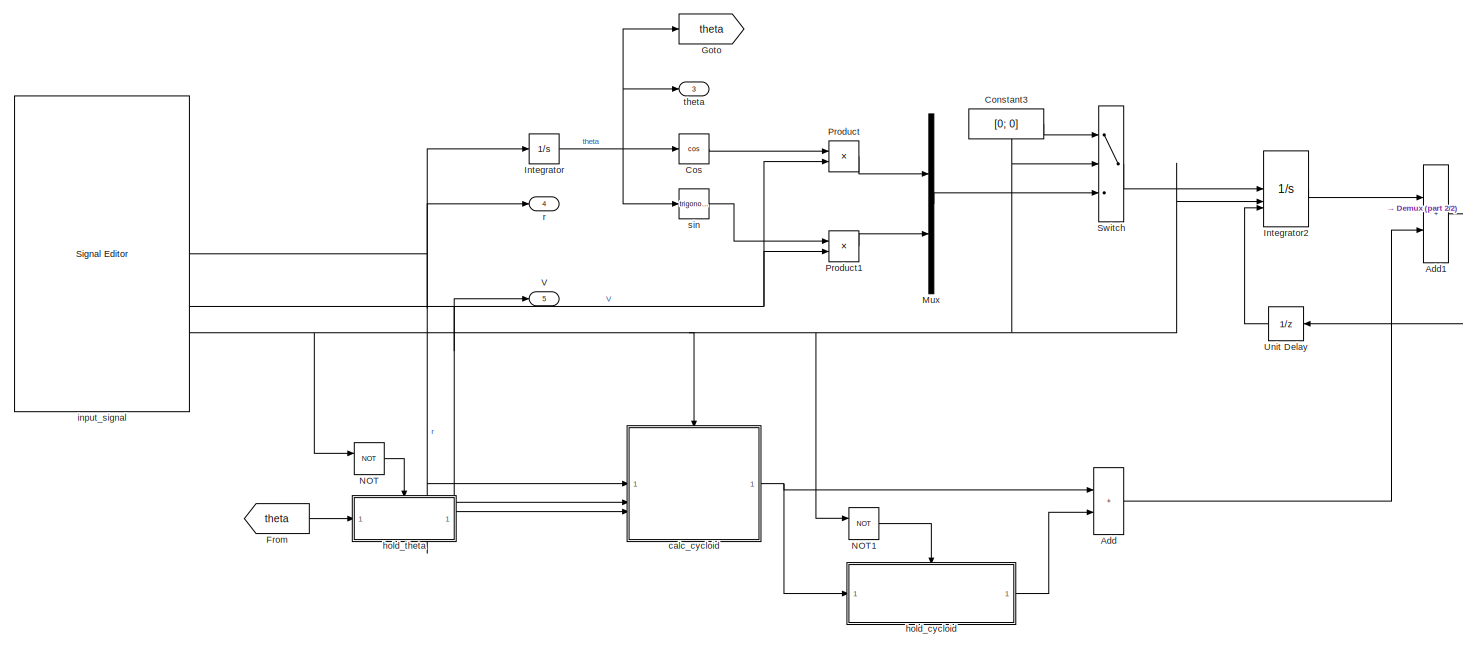
[diagram: root canvas - part 1/2, most of the canvas]
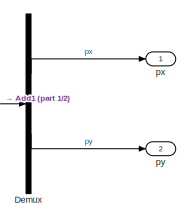
[diagram: root canvas - part 2/2, middle right region]
MODEL slx_d0d6d4215e5c
KIND model
CONFIG AbsTol = auto
CONFIG EnableMultiTasking = off
CONFIG FixedStep = 0.02
CONFIG MaxStep = auto
CONFIG MinStep = auto
CONFIG RelTol = 1e-3
CONFIG SampleTimeConstraint = Unconstrained
CONFIG SolverName = FixedStepAuto
CONFIG StartTime = 0.0
CONFIG StopTime = end_time_vehicle
BLOCK [Sum] Add
  IconShape = rectangular
BLOCK [Sum] Add1
  IconShape = rectangular
BLOCK [Constant] Constant3
  Value = [0; 0]
BLOCK [Trigonometry] Cos
  Operator = cos
BLOCK [Demux] Demux
  Outputs = 2
BLOCK [From] From
  GotoTag = theta
BLOCK [Goto] Goto
  GotoTag = theta
BLOCK [Integrator] Integrator
BLOCK [Integrator] Integrator2
  ExternalReset = falling
  InitialConditionSource = external
BLOCK [Mux] Mux
  DisplayOption = bar
  Inputs = 2
BLOCK [Logic] NOT
  AllPortsSameDT = off
  IconShape = distinctive
  Operator = NOT
  OutDataTypeStr = boolean
BLOCK [Logic] NOT1
  AllPortsSameDT = off
  IconShape = distinctive
  Operator = NOT
  OutDataTypeStr = boolean
BLOCK [Product] Product
BLOCK [Product] Product1
BLOCK [Switch] Switch
  Criteria = u2 > Threshold
  InputSameDT = off
  SaturateOnIntegerOverflow = off
BLOCK [UnitDelay] Unit Delay
  HasFrameUpgradeWarning = on
  SampleTime = -1
BLOCK [Outport] V
  Port = 5
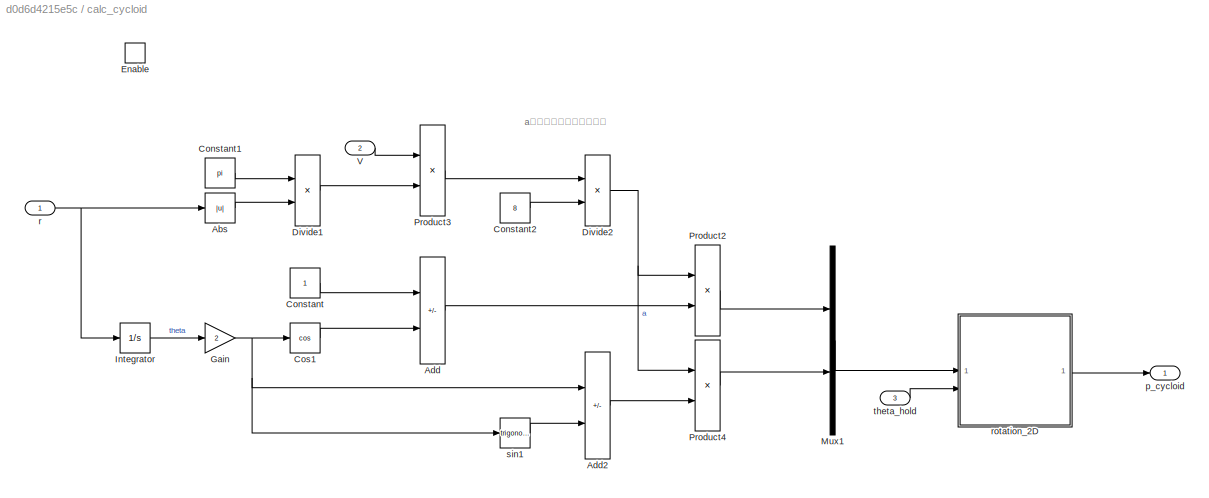
BLOCK [SubSystem] calc_cycloid
  TreatAsAtomicUnit = on
BLOCK [Abs] calc_cycloid/Abs
  SaturateOnIntegerOverflow = off
BLOCK [Sum] calc_cycloid/Add
  IconShape = rectangular
  Inputs = +-
BLOCK [Sum] calc_cycloid/Add2
  IconShape = rectangular
  Inputs = +-
BLOCK [Constant] calc_cycloid/Constant
BLOCK [Constant] calc_cycloid/Constant1
  Value = pi
BLOCK [Constant] calc_cycloid/Constant2
  Value = 8
BLOCK [Trigonometry] calc_cycloid/Cos1
  Operator = cos
BLOCK [Product] calc_cycloid/Divide1
  Inputs = */
BLOCK [Product] calc_cycloid/Divide2
  Inputs = */
BLOCK [EnablePort] calc_cycloid/Enable
  StatesWhenEnabling = reset
BLOCK [Gain] calc_cycloid/Gain
  Gain = 2
BLOCK [Integrator] calc_cycloid/Integrator
BLOCK [Mux] calc_cycloid/Mux1
  DisplayOption = bar
  Inputs = 2
BLOCK [Product] calc_cycloid/Product2
BLOCK [Product] calc_cycloid/Product3
BLOCK [Product] calc_cycloid/Product4
BLOCK [Inport] calc_cycloid/V
  Port = 2
BLOCK [Outport] calc_cycloid/p_cycloid
  InitialOutput = [0; 0]
  OutputWhenDisabled = reset
BLOCK [Inport] calc_cycloid/r
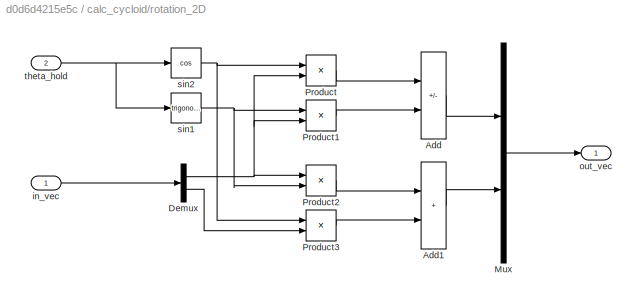
BLOCK [SubSystem] calc_cycloid/rotation_2D
BLOCK [Sum] calc_cycloid/rotation_2D/Add
  IconShape = rectangular
  Inputs = +-
BLOCK [Sum] calc_cycloid/rotation_2D/Add1
  IconShape = rectangular
BLOCK [Demux] calc_cycloid/rotation_2D/Demux
  Outputs = 2
BLOCK [Mux] calc_cycloid/rotation_2D/Mux
  DisplayOption = bar
  Inputs = 2
BLOCK [Product] calc_cycloid/rotation_2D/Product
BLOCK [Product] calc_cycloid/rotation_2D/Product1
BLOCK [Product] calc_cycloid/rotation_2D/Product2
BLOCK [Product] calc_cycloid/rotation_2D/Product3
BLOCK [Inport] calc_cycloid/rotation_2D/in_vec
BLOCK [Outport] calc_cycloid/rotation_2D/out_vec
BLOCK [Trigonometry] calc_cycloid/rotation_2D/sin1
BLOCK [Trigonometry] calc_cycloid/rotation_2D/sin2
  Operator = cos
BLOCK [Inport] calc_cycloid/rotation_2D/theta_hold
  Port = 2
BLOCK [Trigonometry] calc_cycloid/sin1
BLOCK [Inport] calc_cycloid/theta_hold
  Port = 3
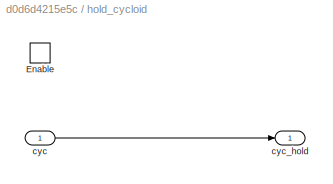
BLOCK [SubSystem] hold_cycloid
  TreatAsAtomicUnit = on
BLOCK [EnablePort] hold_cycloid/Enable
BLOCK [Inport] hold_cycloid/cyc
BLOCK [Outport] hold_cycloid/cyc_hold
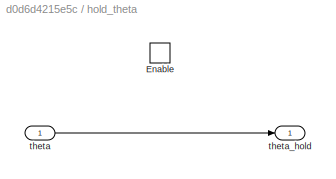
BLOCK [SubSystem] hold_theta
  TreatAsAtomicUnit = on
BLOCK [EnablePort] hold_theta/Enable
BLOCK [Inport] hold_theta/theta
BLOCK [Outport] hold_theta/theta_hold
BLOCK [Reference] input_signal  REF=SignalEditorBlockLib/Signal Editor
  SourceBlock = SignalEditorBlockLib/Signal Editor
  SourceType = SignalEditor
  UserDataPersistent = on
BLOCK [Outport] px
BLOCK [Outport] py
  Port = 2
BLOCK [Outport] r
  Port = 4
BLOCK [Trigonometry] sin
BLOCK [Outport] theta
  Port = 3
ANNOTATION calc_cycloid: aは回転する円の旋回半径
NET Add1:1 -> Demux:1, Unit Delay:1
LINE Add:1 -> Add1:2
LINE Constant3:1 -> Switch:1
LINE Cos:1 -> Product:1
LINE Demux:1 -> px:1
LINE Demux:2 -> py:1
LINE From:1 -> hold_theta:1
LINE Integrator2:1 -> Add1:1
NET Integrator:1 -> Cos:1, Goto:1, sin:1, theta:1
LINE Mux:1 -> Switch:3
LINE NOT1:1 -> hold_cycloid:enable
LINE NOT:1 -> hold_theta:enable
LINE Product1:1 -> Mux:2
LINE Product:1 -> Mux:1
LINE Switch:1 -> Integrator2:1
LINE Unit Delay:1 -> Integrator2:3
LINE calc_cycloid/Abs:1 -> calc_cycloid/Divide1:2
LINE calc_cycloid/Add2:1 -> calc_cycloid/Product4:2
LINE calc_cycloid/Add:1 -> calc_cycloid/Product2:2
LINE calc_cycloid/Constant1:1 -> calc_cycloid/Divide1:1
LINE calc_cycloid/Constant2:1 -> calc_cycloid/Divide2:2
LINE calc_cycloid/Constant:1 -> calc_cycloid/Add:1
LINE calc_cycloid/Cos1:1 -> calc_cycloid/Add:2
LINE calc_cycloid/Divide1:1 -> calc_cycloid/Product3:2
NET calc_cycloid/Divide2:1 -> calc_cycloid/Product2:1, calc_cycloid/Product4:1
NET calc_cycloid/Gain:1 -> calc_cycloid/Add2:1, calc_cycloid/Cos1:1, calc_cycloid/sin1:1
LINE calc_cycloid/Integrator:1 -> calc_cycloid/Gain:1
LINE calc_cycloid/Mux1:1 -> calc_cycloid/rotation_2D:1
LINE calc_cycloid/Product2:1 -> calc_cycloid/Mux1:1
LINE calc_cycloid/Product3:1 -> calc_cycloid/Divide2:1
LINE calc_cycloid/Product4:1 -> calc_cycloid/Mux1:2
LINE calc_cycloid/V:1 -> calc_cycloid/Product3:1
NET calc_cycloid/r:1 -> calc_cycloid/Abs:1, calc_cycloid/Integrator:1
LINE calc_cycloid/rotation_2D/Add1:1 -> calc_cycloid/rotation_2D/Mux:2
LINE calc_cycloid/rotation_2D/Add:1 -> calc_cycloid/rotation_2D/Mux:1
NET calc_cycloid/rotation_2D/Demux:1 -> calc_cycloid/rotation_2D/Product1:2, calc_cycloid/rotation_2D/Product2:1, calc_cycloid/rotation_2D/Product:2
LINE calc_cycloid/rotation_2D/Demux:2 -> calc_cycloid/rotation_2D/Product3:2
LINE calc_cycloid/rotation_2D/Mux:1 -> calc_cycloid/rotation_2D/out_vec:1
LINE calc_cycloid/rotation_2D/Product1:1 -> calc_cycloid/rotation_2D/Add:2
LINE calc_cycloid/rotation_2D/Product2:1 -> calc_cycloid/rotation_2D/Add1:1
LINE calc_cycloid/rotation_2D/Product3:1 -> calc_cycloid/rotation_2D/Add1:2
LINE calc_cycloid/rotation_2D/Product:1 -> calc_cycloid/rotation_2D/Add:1
LINE calc_cycloid/rotation_2D/in_vec:1 -> calc_cycloid/rotation_2D/Demux:1
NET calc_cycloid/rotation_2D/sin1:1 -> calc_cycloid/rotation_2D/Product1:1, calc_cycloid/rotation_2D/Product2:2
NET calc_cycloid/rotation_2D/sin2:1 -> calc_cycloid/rotation_2D/Product3:1, calc_cycloid/rotation_2D/Product:1
NET calc_cycloid/rotation_2D/theta_hold:1 -> calc_cycloid/rotation_2D/sin1:1, calc_cycloid/rotation_2D/sin2:1
LINE calc_cycloid/rotation_2D:1 -> calc_cycloid/p_cycloid:1
LINE calc_cycloid/sin1:1 -> calc_cycloid/Add2:2
LINE calc_cycloid/theta_hold:1 -> calc_cycloid/rotation_2D:2
NET calc_cycloid:1 -> Add:1, hold_cycloid:1
LINE hold_cycloid/cyc:1 -> hold_cycloid/cyc_hold:1
LINE hold_cycloid:1 -> Add:2
LINE hold_theta/theta:1 -> hold_theta/theta_hold:1
LINE hold_theta:1 -> calc_cycloid:3
NET input_signal:1 -> Integrator:1, calc_cycloid:1, r:1
NET input_signal:2 -> Product1:2, Product:2, V:1, calc_cycloid:2
NET input_signal:3 -> Integrator2:2, NOT1:1, NOT:1, Switch:2, calc_cycloid:enable
LINE sin:1 -> Product1:1
note: NET lines group one-source signal fan-out (src -> all destinations, sorted); 1:1 wires keep LINE
